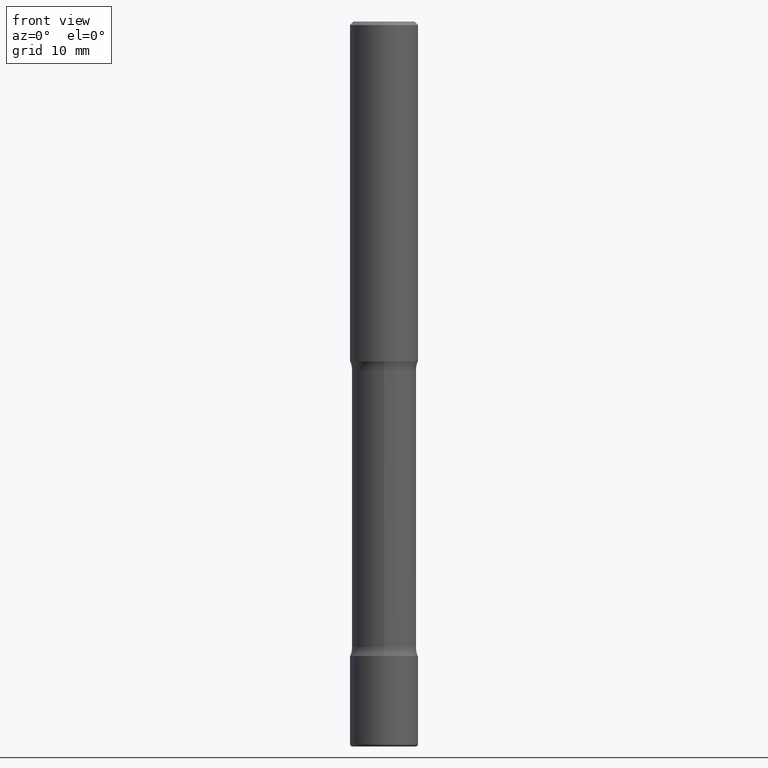
[diagram: clean part render]
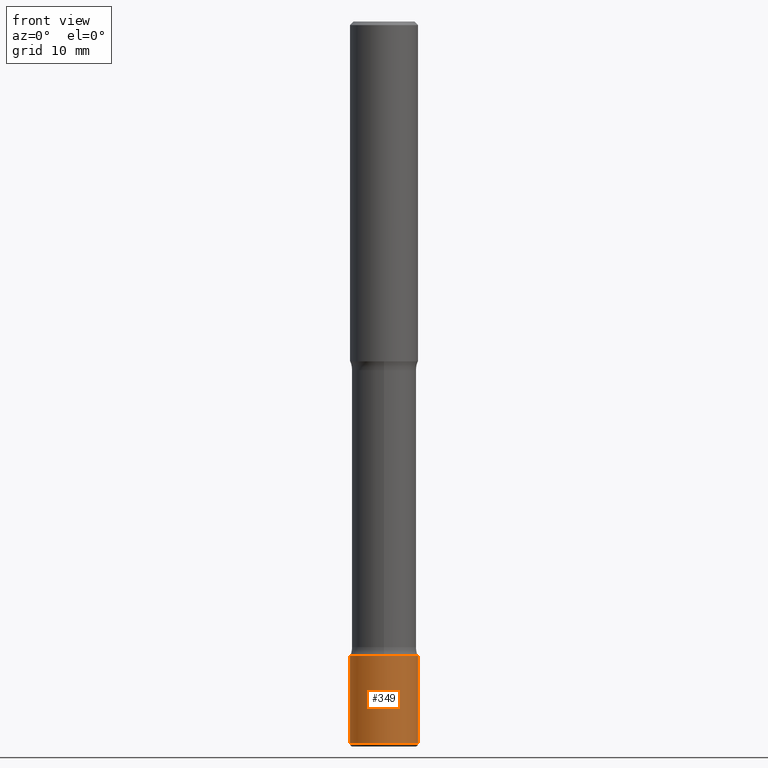
[diagram: same view with one face highlighted and labeled with its STEP entity id]
A machine part, front view. The second image highlights one B-rep face of the part: STEP entity #349.
In plain terms, the highlighted cylindrical surface (edge-blend (fillet) strip) has radius 4.7625 mm, axis along (-0, 0, 1).
Its self-contained STEP definition (entity closure, byte-faithful):
#35 = LINE ( 'NONE', #301, #83 ) ;
#52 = EDGE_CURVE ( 'NONE', #231, #302, #242, .T. ) ;
#55 = DIRECTION ( 'NONE',  ( -2.445468806185136597E-29, 3.491481338843145583E-15, 1.000000000000000000 ) ) ;
#78 = DIRECTION ( 'NONE',  ( -2.445468806185136877E-29, 3.491481338843145188E-15, 1.000000000000000000 ) ) ;
#83 = VECTOR ( 'NONE', #78, 39.37007874015748143 ) ;
#94 = AXIS2_PLACEMENT_3D ( 'NONE', #200, #552, #394 ) ;
#100 = EDGE_CURVE ( 'NONE', #231, #436, #408, .T. ) ;
#138 = CARTESIAN_POINT ( 'NONE',  ( 0.1875000000000001110, -1.352949018801718751E-14, -3.500000000000000444 ) ) ;
#170 = CARTESIAN_POINT ( 'NONE',  ( -0.1874999999999999722, -1.258128550573974937E-14, -3.985000000000000320 ) ) ;
#194 = VERTEX_POINT ( 'NONE', #138 ) ;
#200 = CARTESIAN_POINT ( 'NONE',  ( 9.745193192647770190E-29, -1.391355313528993565E-14, -3.985000000000000320 ) ) ;
#203 = ORIENTED_EDGE ( 'NONE', *, *, #100, .F. ) ;
#224 = CARTESIAN_POINT ( 'NONE',  ( 0.000000000000000000, 0.000000000000000000, 0.000000000000000000 ) ) ;
#231 = VERTEX_POINT ( 'NONE', #170 ) ;
#233 = AXIS2_PLACEMENT_3D ( 'NONE', #224, #381, #419 ) ;
#234 = CARTESIAN_POINT ( 'NONE',  ( 0.1874999999999999722, -1.522285863735611381E-14, -3.985000000000000320 ) ) ;
#242 = CIRCLE ( 'NONE', #94, 0.1875000000000000555 ) ;
#272 = FACE_OUTER_BOUND ( 'NONE', #499, .T. ) ;
#278 = CARTESIAN_POINT ( 'NONE',  ( 8.559140821647978089E-29, -1.222018468595101092E-14, -3.500000000000000444 ) ) ;
#301 = CARTESIAN_POINT ( 'NONE',  ( 0.1875000000000000833, -1.309305502066175600E-15, 9.142831454617383816E-30 ) ) ;
#302 = VERTEX_POINT ( 'NONE', #234 ) ;
#316 = CARTESIAN_POINT ( 'NONE',  ( -0.1875000000000000833, 1.332267629550188440E-15, -9.223003294227952194E-30 ) ) ;
#338 = EDGE_CURVE ( 'NONE', #436, #194, #515, .T. ) ;
#349 = ADVANCED_FACE ( 'NONE', ( #272 ), #462, .T. ) ;
#361 = VECTOR ( 'NONE', #455, 39.37007874015748143 ) ;
#378 = CARTESIAN_POINT ( 'NONE',  ( -0.1875000000000001110, -1.173460128107028622E-14, -3.500000000000000444 ) ) ;
#381 = DIRECTION ( 'NONE',  ( -2.445468806185136597E-29, 3.491481338843145583E-15, 1.000000000000000000 ) ) ;
#394 = DIRECTION ( 'NONE',  ( 1.000000000000000000, -6.982962677686270655E-15, 0.000000000000000000 ) ) ;
#400 = ORIENTED_EDGE ( 'NONE', *, *, #52, .T. ) ;
#408 = LINE ( 'NONE', #316, #361 ) ;
#417 = AXIS2_PLACEMENT_3D ( 'NONE', #278, #55, #424 ) ;
#419 = DIRECTION ( 'NONE',  ( 1.000000000000000000, -6.982962677686266711E-15, 4.876176775795935793E-29 ) ) ;
#424 = DIRECTION ( 'NONE',  ( 1.000000000000000000, -6.982962677686269077E-15, 0.000000000000000000 ) ) ;
#436 = VERTEX_POINT ( 'NONE', #378 ) ;
#455 = DIRECTION ( 'NONE',  ( -2.445468806185136877E-29, 3.491481338843145188E-15, 1.000000000000000000 ) ) ;
#462 = CYLINDRICAL_SURFACE ( 'NONE', #233, 0.1875000000000000833 ) ;
#470 = EDGE_CURVE ( 'NONE', #302, #194, #35, .T. ) ;
#494 = ORIENTED_EDGE ( 'NONE', *, *, #470, .T. ) ;
#499 = EDGE_LOOP ( 'NONE', ( #203, #400, #494, #517 ) ) ;
#515 = CIRCLE ( 'NONE', #417, 0.1875000000000001110 ) ;
#517 = ORIENTED_EDGE ( 'NONE', *, *, #338, .F. ) ;
#552 = DIRECTION ( 'NONE',  ( -2.445468806185136597E-29, 3.491481338843145583E-15, 1.000000000000000000 ) ) ;